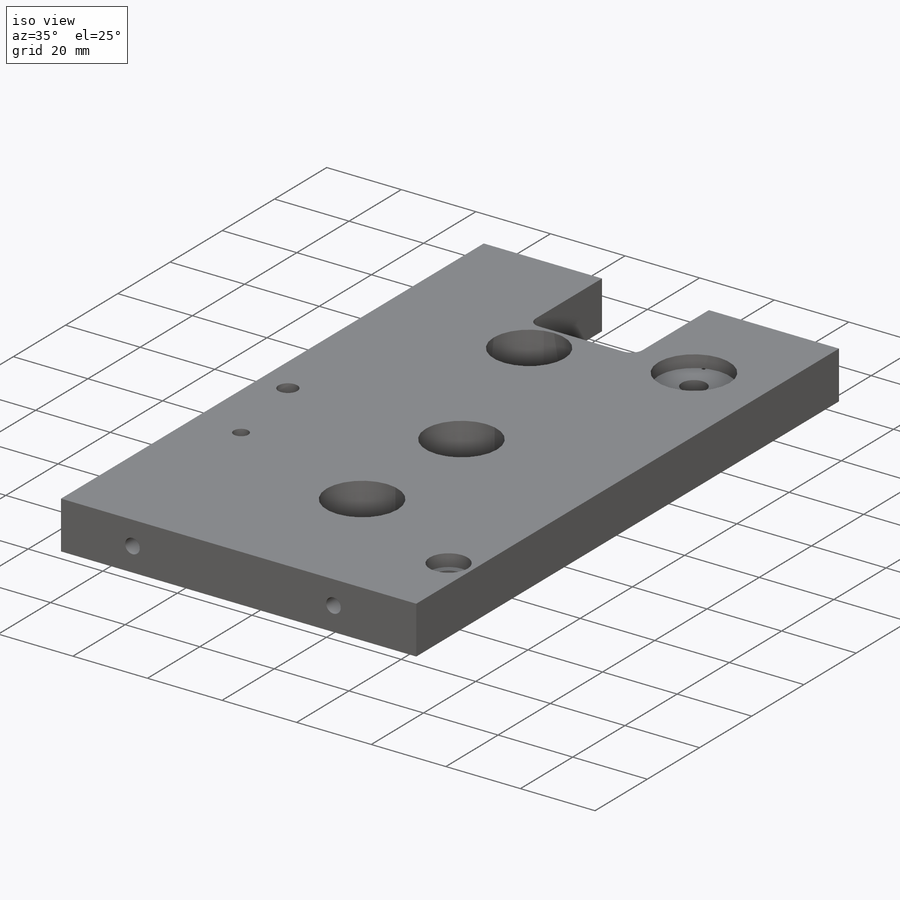
[diagram: iso view]
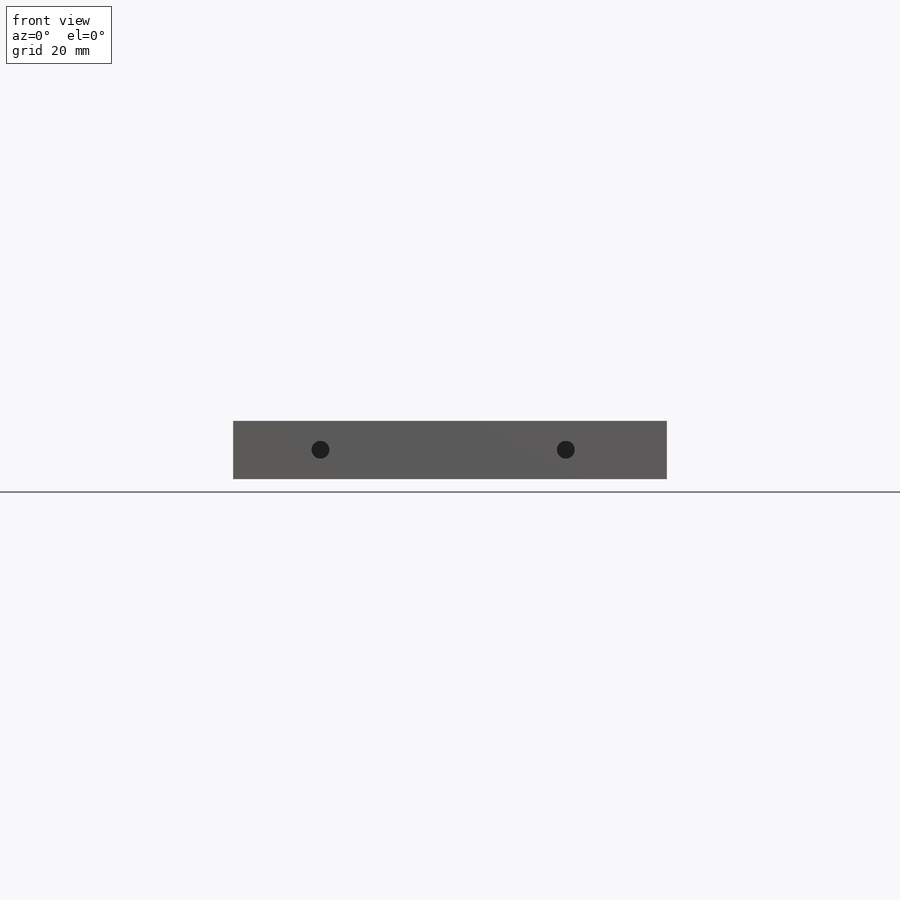
[diagram: front view]
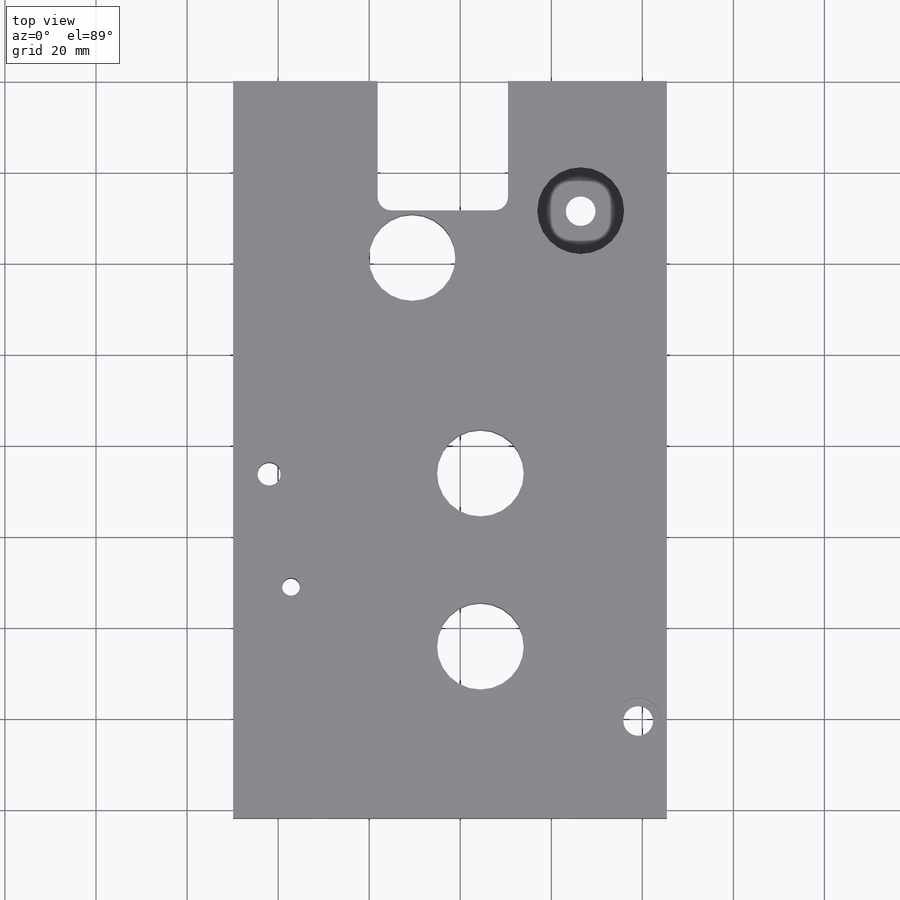
[diagram: top view]
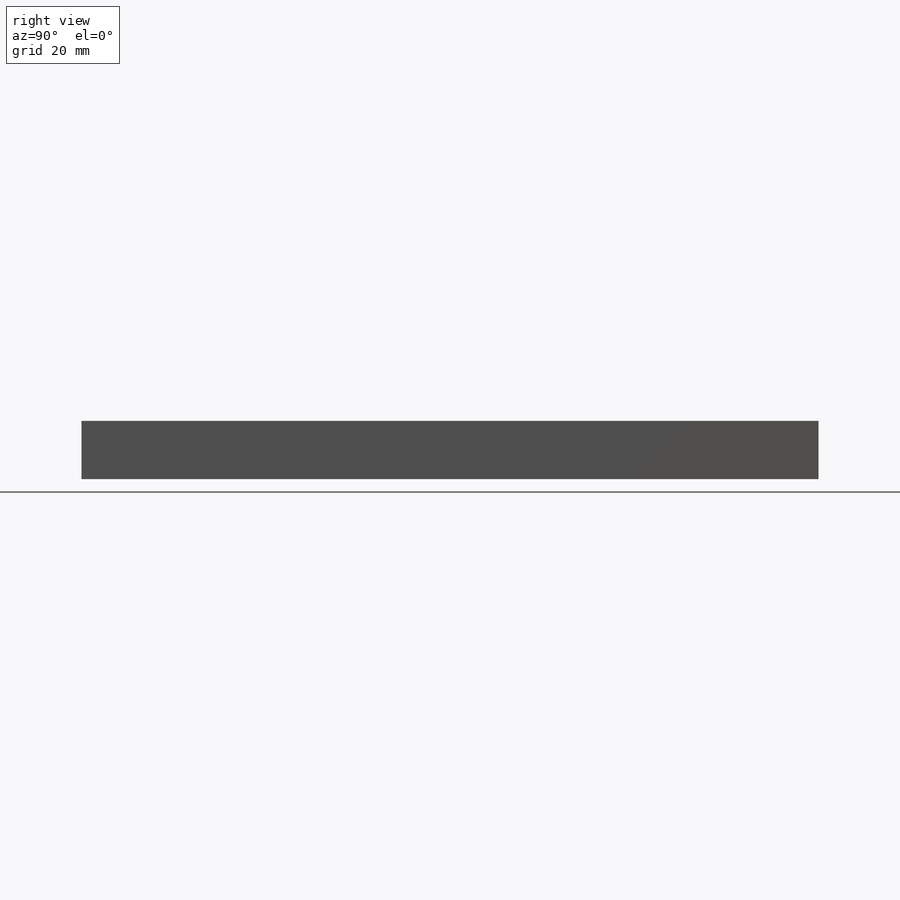
[diagram: right view]
SOLIDWORKS PART (.sldprt)
format: sldprt  version: not decoded by parser v0  size: 440,320 bytes
history: native  units: mm
features: sketch x11, cut_extrude x9, material x1, extrude x1, plane x1 (+11 scaffold rows collapsed)
feature tree (34):
  scaffold x11  (default folders/planes/origin — collapsed)
  material  "1060 Alloy"
  sketch  "Sketch1"  dims[D3=4.79mm D1=12.8mm D2=95.25mm]
  extrude  "Boss-Extrude1"  Depth=161.88mm
  cut_extrude  "Cut-Extrude1"  [1 undecoded]
  sketch  "Sketch1<3>"  dims[D1=20.2mm]
  cut_extrude  "Cut-Extrude2"  [1 undecoded]
  sketch  "Sketch1<4>"  dims[D1=21.5mm]
  sketch  "Sketch2"  dims[D1=3.0mm D5=19.05mm D2=34.88mm D3=31.72mm D4=28.4mm D6=28.22mm D7=31.42mm D8=66.25mm D9=31.42mm]
  cut_extrude  "Cut-Extrude3"  [1 undecoded]
  sketch  "Sketch3"  dims[D1=3.92mm D2=6.53mm D3=10.18mm D4=19.05mm D9=5.12mm D5=1.21mm D6=9.4mm D7=123.85mm D8=16.3mm D10=75.6mm D11=7.9mm D12=50.8mm D13=12.7mm]
  cut_extrude  "Cut-Extrude4"  [1 undecoded]
  sketch  "Sketch4"
  cut_extrude  "Cut-Extrude5"  Depth=3.32mm
  sketch  "Sketch5"  dims[D1=10.62mm]
  cut_extrude  "Cut-Extrude6"  Depth=6.65mm
  sketch  "Sketch6"  dims[D3=3.93mm D1=22.5mm D2=76.1mm]
  cut_extrude  "Cut-Extrude7"  Depth=17.25mm
  sketch  "Sketch7"  dims[D1=3.94mm D2=19.6mm]
  cut_extrude  "Cut-Extrude8"  Depth=15.87mm
  plane  "Plane1"
  sketch  "Sketch8"  dims[c1.D9=23.0mm c1.D1=10.4mm c1.D2=8.73mm c1.D3=9.63mm c1.D4=5.4mm c1.D5=13.6mm c1.D6=0.79mm c1.D7=1.54mm c1.D8=3.43mm c1.D10=52.09mm c1.D11=2.0mm c2.D10=57.29mm]
  sketch  "Sketch9"
  cut_extrude  "Cut-Extrude9"  [1 undecoded]
decode coverage: 14 of 21 modeling features carry decoded parameters
note: 5 parameter values undecoded
summary: no parameter record found for 5 features
note: suppression state not decoded; provenance and decode notes live in map.json
